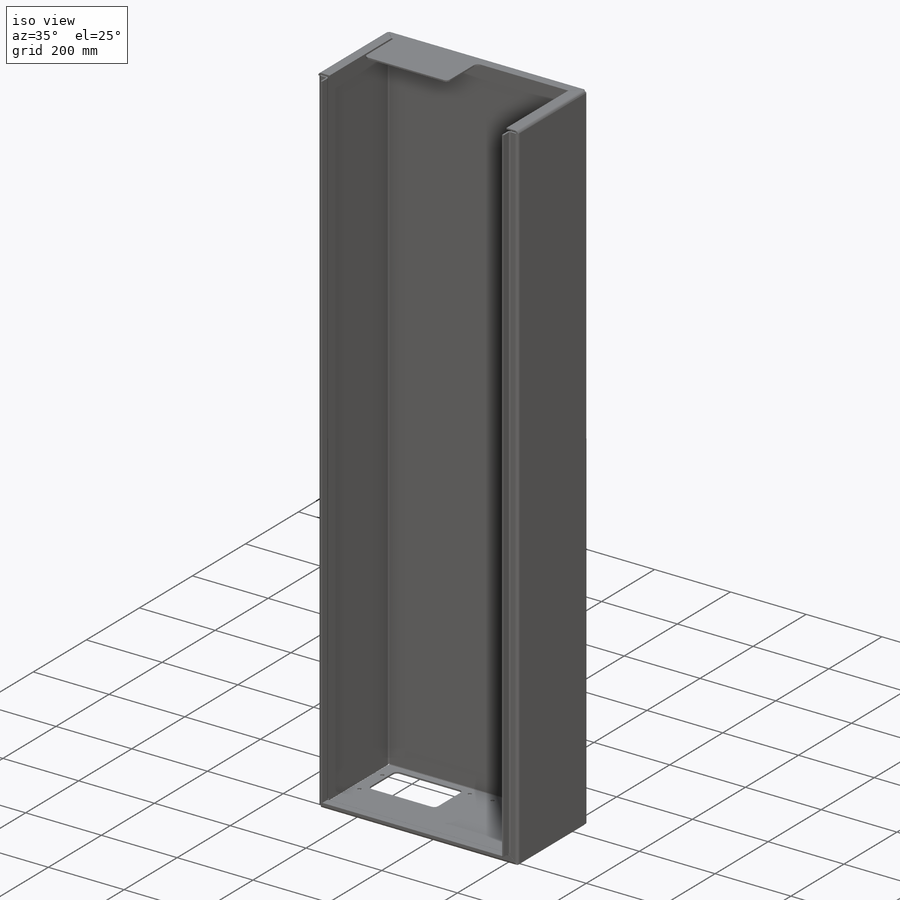
[diagram: iso view]
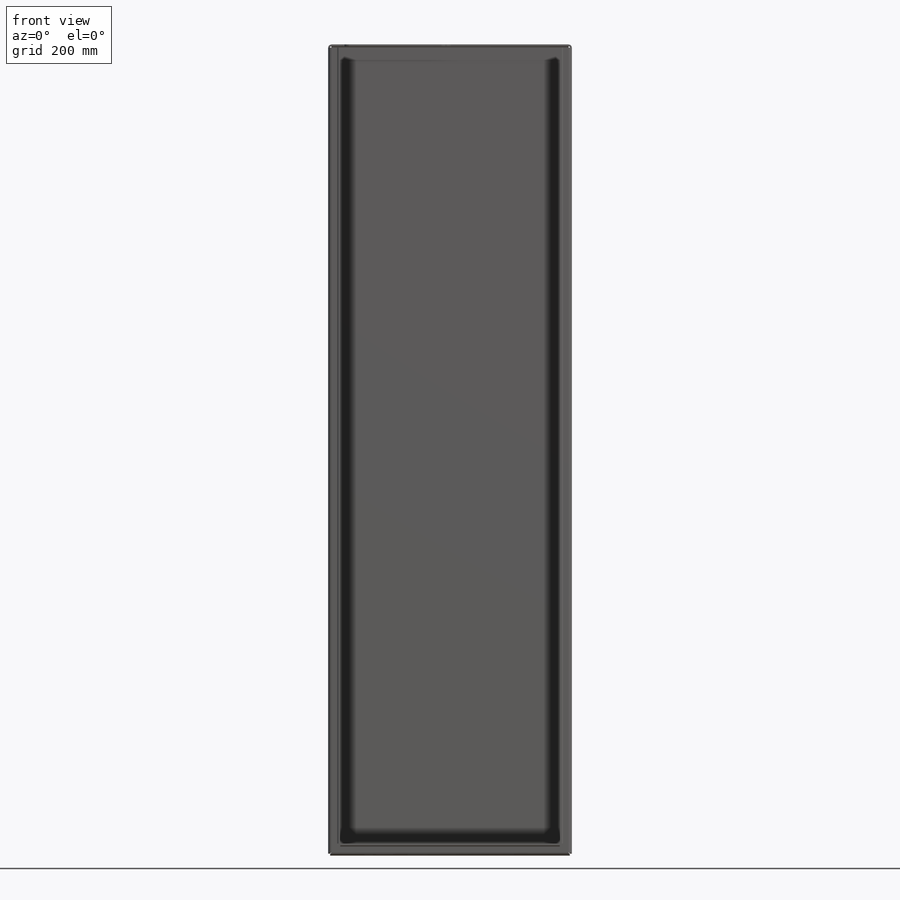
[diagram: front view]
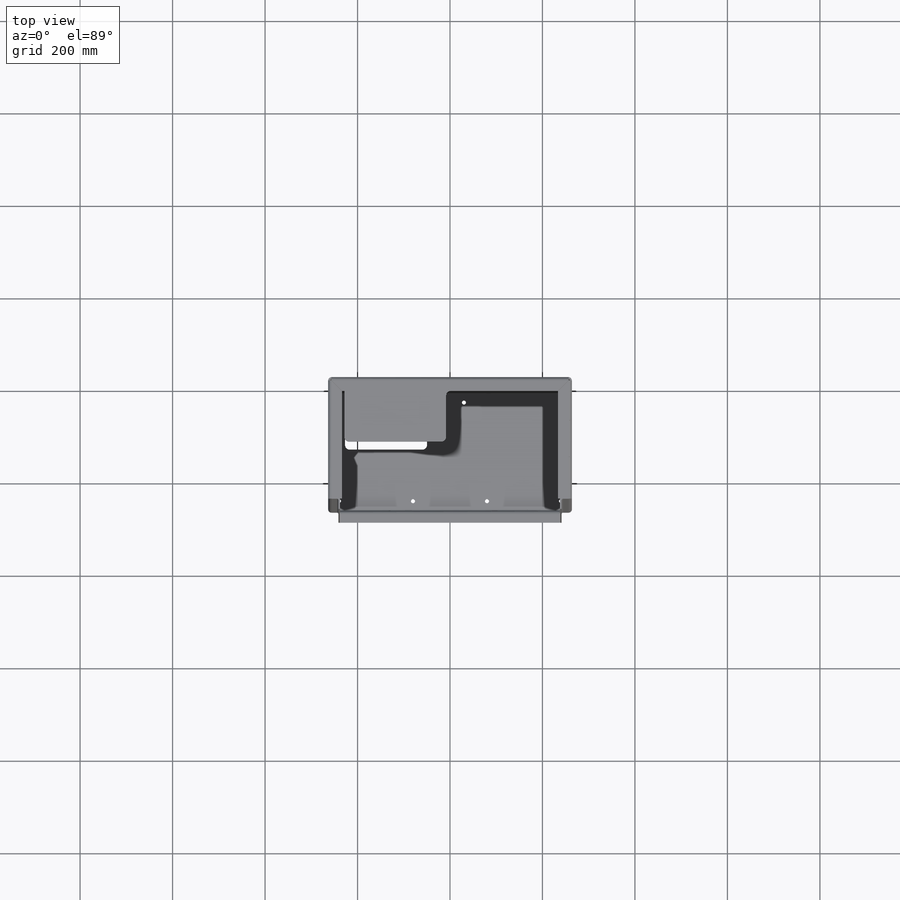
[diagram: top view]
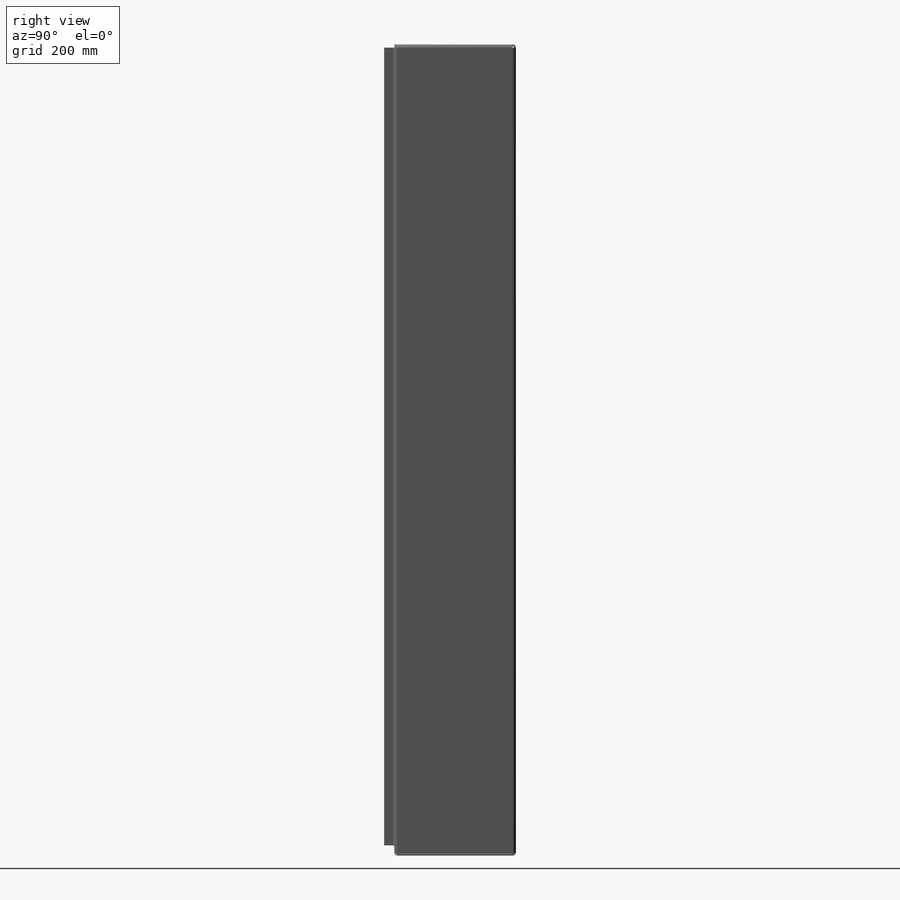
[diagram: right view]
SOLIDWORKS PART (.sldprt)
format: sldprt  version: not decoded by parser v0  size: 617,472 bytes
history: native  units: mm
features: sketch x17, fillet x12, sheet_metal_op x10, plane x3, material x1, cut_extrude x1, hole x1, extrude x1 + 1 further entry (+8 scaffold rows collapsed; 1 parser-record rows omitted)
feature tree (56):
  scaffold x8  (default folders/planes/origin — collapsed)
  material  "1.0037 (S235JR)"
  plane  "Vorne"
  plane  "Oben"
  plane  "Rechts"
  sketch  "Skizze1"  dims[D1=527.0mm]
  sheet_metal_op  "Blech1"
  sheet_metal_op  "Basis-Blech1"
  sketch  "Skizze10"
  sketch  "Skizze31"
  sketch  "Skizze33"  dims[D1=3.0mm D4=90.0deg D5=1.0 D8=2.0mm D9=2.0mm]
  sheet_metal_op  "Kantenbiegung2"
  sheet_metal_op  "Kantenbiegung3"
  sketch  "Skizze34"  dims[c1.D1=30.0mm c2.D1=3.0mm c2.D4=90.0deg c2.D5=4.0 c2.D8=2.0mm c2.D9=2.0mm c3.D1=3.0mm c3.D2=500.0mm c3.D3=0.0mm c3.D4=90.0deg c3.D5=5.0 c3.D8=2.0mm c3.D9=2.0mm c4.D1=3.0mm c4.D4=90.0deg c4.D5=6.0 c4.D8=2.0mm c4.D9=2.0mm c5.D1=3.0mm c5.D2=500.0mm c5.D3=1.0mm c6.D2=0.0mm c6.D3=0.0mm c6.Kante-Lasche2=0.0]
  sketch  "Skizze41"
  sketch  "Skizze42"
  sketch  "Skizze43"
  sheet_metal_op  "Kantenbiegung4"
  sheet_metal_op  "Kantenbiegung5"
  sheet_metal_op  "Kantenbiegung6"  Kante-Lasche3=0
  sketch  "Skizze50"
  sketch  "Skizze51"
  sketch  "Skizze52"
  sheet_metal_op  "Kantenbiegung7"
  sheet_metal_op  "Kantenbiegung8"
  sheet_metal_op  "Kantenbiegung9"
  sketch  "Skizze27"  dims[c1.D1=~96.825138mm c1.D2=~41.312059mm c2.D1=~147.174209mm c2.D2=~178.158253mm c3.D1=32.0mm c3.D2=22.0mm c3.D3=105.0mm c3.D4=210.0mm]
  cut_extrude  "Schnitt-Linear austragen1"  [1 undecoded]
  hole  "Ø9.0 (9) Durchmesser Bohrung1"  Diameter=9mm Depth=4mm
  sketch  "Skizze29"  dims[c1.D1=23.0mm c1.D2=23.5mm c1.D3=160.0mm c1.D4=160.0mm c1.D5=23.5mm c1.D6=~24.082525mm c2.D1=25.0mm c2.D6=~29.60152mm c2.D5=23.5mm c3.D6=~29.60152mm c3.D2=23.5mm c4.D6=~25.065258mm c4.D7=47.0mm c4.D8=28.0mm c4.D1=25.0mm c5.D6=122.0mm c5.D7=~208.298458mm c5.D8=147.5mm c5.D9=125.0mm c5.D10=25.0mm c6.D8=60.0mm c6.D9=30.0mm]
  sketch  "Skizze28"  dims[hole-wizard template sketch: 46 standard entries collapsed; hole parameters kept: c15.Bohrerdurchmesser=9.0mm c15.Bohrungstiefe=4.0mm c15.Senkdurchmesser2 (Oben)=9.5mm c15.D4=~3.666174mm c15.Senkwinkel2 (Oben)=90.0deg c15.Senkdurchmesser2 (Unten)=9.5mm c15.D6=~9.919017mm c15.Senkwinkel2 (Unten)=90.0deg]
  sketch  "Skizze53"  dims[D1=220.0mm D2=5.0mm]
  extrude  "Aufsatz-Linear austragen1"  Depth=110mm
  fillet  "Verrundung1"  Radius=10mm
  "Abwicklung1"
  sketch  "Biegung-Linien1"
  sketch  "Rahmen1"
  fillet  "Abwickeln-<Kantenbiegung2>1"  [1 undecoded]
  fillet  "Abwickeln-<Kantenbiegung3>1"  [1 undecoded]
  fillet  "Abwickeln-<Gehrungsbiegung1>1"  [1 undecoded]
  fillet  "Abwickeln-<Gehrungsbiegung2>1"  [1 undecoded]
  fillet  "Abwickeln-<Gehrungsbiegung3>1"  [1 undecoded]
  fillet  "Abwickeln-<Kantenbiegung4>1"  [1 undecoded]
  fillet  "Abwickeln-<Kantenbiegung5>1"  [1 undecoded]
  fillet  "Abwickeln-<Kantenbiegung6>1"  [1 undecoded]
  fillet  "Abwickeln-<Kantenbiegung7>1"  [1 undecoded]
  fillet  "Abwickeln-<Kantenbiegung8>1"  [1 undecoded]
  fillet  "Abwickeln-<Kantenbiegung9>1"  [1 undecoded]
  parser-record x1  (decoder bookkeeping rows leaked as tree rows — omitted from the tree; the rows remain in map.json)
decode coverage: 11 of 42 modeling features carry decoded parameters; 1 rows unclassified (native names shown)
note: ~ marks probable driven/reference dimensions
note: 12 parameter values undecoded
summary: no parameter record found for 12 features
note: suppression state not decoded; provenance and decode notes live in map.json
